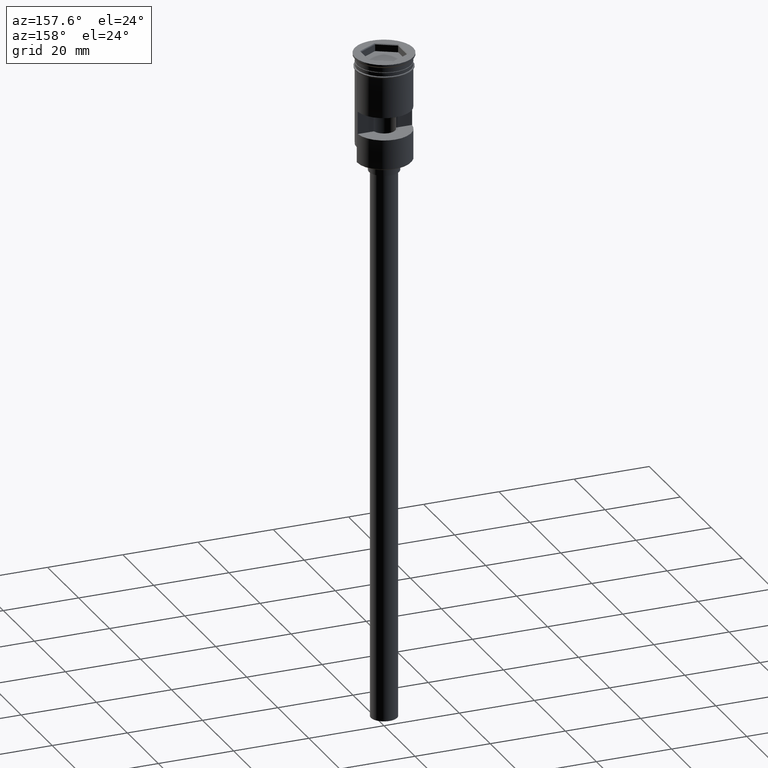
[diagram: clean part render]
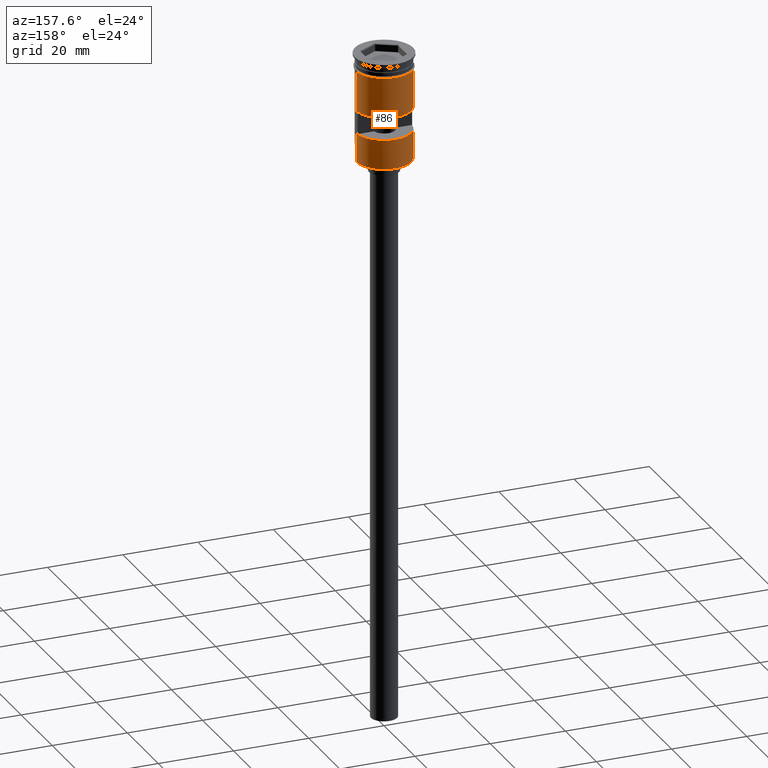
[diagram: same view with one face highlighted and labeled with its STEP entity id]
A machine part, auxiliary view. The second image highlights one B-rep face of the part: STEP entity #86.
In plain terms, the highlighted cylindrical surface (edge-blend (fillet) strip) has radius 7.25 mm, axis along (-0, -0, 1).
Its self-contained STEP definition (entity closure, byte-faithful):
#59 = CARTESIAN_POINT ( 'NONE',  ( 0.000000000000000000, 0.000000000000000000, 0.000000000000000000 ) ) ;
#69 = CIRCLE ( 'NONE', #297, 7.249999999999997335 ) ;
#71 = DIRECTION ( 'NONE',  ( -0.000000000000000000, -0.000000000000000000, 1.000000000000000000 ) ) ;
#74 = DIRECTION ( 'NONE',  ( -0.000000000000000000, -0.000000000000000000, 1.000000000000000000 ) ) ;
#86 = ADVANCED_FACE ( 'NONE', ( #302, #1543 ), #317, .T. ) ;
#91 = AXIS2_PLACEMENT_3D ( 'NONE', #59, #803, #792 ) ;
#98 = EDGE_CURVE ( 'NONE', #1457, #1281, #1050, .T. ) ;
#137 = CARTESIAN_POINT ( 'NONE',  ( -7.249999999999997335, 8.878689293818306130E-16, 0.000000000000000000 ) ) ;
#147 = DIRECTION ( 'NONE',  ( -0.000000000000000000, -5.217213461584384723E-16, 1.000000000000000000 ) ) ;
#230 = CARTESIAN_POINT ( 'NONE',  ( 0.000000000000000000, 0.000000000000000000, -28.29999999999999361 ) ) ;
#233 = CARTESIAN_POINT ( 'NONE',  ( -7.249999999999994671, 0.000000000000000000, -28.50000000000000000 ) ) ;
#276 = ORIENTED_EDGE ( 'NONE', *, *, #1500, .F. ) ;
#297 = AXIS2_PLACEMENT_3D ( 'NONE', #1579, #964, #357 ) ;
#302 = FACE_BOUND ( 'NONE', #409, .T. ) ;
#311 = CARTESIAN_POINT ( 'NONE',  ( 7.249999999999997335, 0.000000000000000000, 0.000000000000000000 ) ) ;
#317 = CYLINDRICAL_SURFACE ( 'NONE', #91, 7.249999999999997335 ) ;
#320 = AXIS2_PLACEMENT_3D ( 'NONE', #230, #876, #490 ) ;
#328 = CARTESIAN_POINT ( 'NONE',  ( 7.225129756620287225, 0.5999999999999999778, -20.50000000000000000 ) ) ;
#329 = CARTESIAN_POINT ( 'NONE',  ( 7.249999999999994671, 8.878689293818304158E-16, -28.29999999999999361 ) ) ;
#357 = DIRECTION ( 'NONE',  ( 0.000000000000000000, -1.000000000000000000, 2.392722035830079465E-16 ) ) ;
#369 = ORIENTED_EDGE ( 'NONE', *, *, #482, .F. ) ;
#402 = VECTOR ( 'NONE', #1108, 1000.000000000000000 ) ;
#407 = EDGE_CURVE ( 'NONE', #940, #895, #1520, .T. ) ;
#409 = EDGE_LOOP ( 'NONE', ( #369, #714, #831, #415 ) ) ;
#415 = ORIENTED_EDGE ( 'NONE', *, *, #1548, .F. ) ;
#440 = VERTEX_POINT ( 'NONE', #626 ) ;
#447 = EDGE_CURVE ( 'NONE', #440, #750, #1378, .T. ) ;
#459 = LINE ( 'NONE', #835, #1603 ) ;
#482 = EDGE_CURVE ( 'NONE', #1498, #691, #744, .T. ) ;
#490 = DIRECTION ( 'NONE',  ( -1.000000000000000000, 0.000000000000000000, 0.000000000000000000 ) ) ;
#498 = VECTOR ( 'NONE', #74, 1000.000000000000000 ) ;
#516 = DIRECTION ( 'NONE',  ( 0.000000000000000000, 1.000000000000000000, 4.785444071660158930E-16 ) ) ;
#520 = DIRECTION ( 'NONE',  ( 0.000000000000000000, 0.000000000000000000, -1.000000000000000000 ) ) ;
#545 = ORIENTED_EDGE ( 'NONE', *, *, #407, .T. ) ;
#586 = CARTESIAN_POINT ( 'NONE',  ( 0.000000000000000000, 0.000000000000000000, -3.799999999999998490 ) ) ;
#612 = CIRCLE ( 'NONE', #1239, 7.249999999999999112 ) ;
#626 = CARTESIAN_POINT ( 'NONE',  ( -7.249999999999994671, 0.000000000000000000, -24.29999999999999361 ) ) ;
#638 = DIRECTION ( 'NONE',  ( -0.000000000000000000, -0.000000000000000000, 1.000000000000000000 ) ) ;
#678 = EDGE_LOOP ( 'NONE', ( #821, #802, #276, #880, #706, #545 ) ) ;
#691 = VERTEX_POINT ( 'NONE', #1560 ) ;
#706 = ORIENTED_EDGE ( 'NONE', *, *, #930, .F. ) ;
#714 = ORIENTED_EDGE ( 'NONE', *, *, #1261, .F. ) ;
#719 = VECTOR ( 'NONE', #638, 1000.000000000000000 ) ;
#744 = CIRCLE ( 'NONE', #1263, 7.249999999999997335 ) ;
#750 = VERTEX_POINT ( 'NONE', #832 ) ;
#783 = CARTESIAN_POINT ( 'NONE',  ( 7.249999999999994671, 8.878689293818304158E-16, -28.50000000000000000 ) ) ;
#792 = DIRECTION ( 'NONE',  ( 1.000000000000000000, 0.000000000000000000, 0.000000000000000000 ) ) ;
#802 = ORIENTED_EDGE ( 'NONE', *, *, #447, .T. ) ;
#803 = DIRECTION ( 'NONE',  ( -0.000000000000000000, -0.000000000000000000, 1.000000000000000000 ) ) ;
#821 = ORIENTED_EDGE ( 'NONE', *, *, #1156, .T. ) ;
#831 = ORIENTED_EDGE ( 'NONE', *, *, #1517, .F. ) ;
#832 = CARTESIAN_POINT ( 'NONE',  ( -7.250000000000000000, 8.878689293818310074E-16, -3.799999999999998490 ) ) ;
#835 = CARTESIAN_POINT ( 'NONE',  ( -7.225129756620288113, 0.5999999999999999778, 0.000000000000000000 ) ) ;
#851 = DIRECTION ( 'NONE',  ( -0.000000000000000000, -0.000000000000000000, 1.000000000000000000 ) ) ;
#876 = DIRECTION ( 'NONE',  ( 0.000000000000000000, 0.000000000000000000, 1.000000000000000000 ) ) ;
#880 = ORIENTED_EDGE ( 'NONE', *, *, #98, .F. ) ;
#895 = VERTEX_POINT ( 'NONE', #996 ) ;
#930 = EDGE_CURVE ( 'NONE', #940, #1457, #1516, .T. ) ;
#940 = VERTEX_POINT ( 'NONE', #329 ) ;
#964 = DIRECTION ( 'NONE',  ( -0.000000000000000000, -2.608606730792192361E-16, -1.000000000000000000 ) ) ;
#996 = CARTESIAN_POINT ( 'NONE',  ( -7.249999999999994671, 0.000000000000000000, -28.29999999999999361 ) ) ;
#1050 = LINE ( 'NONE', #311, #1390 ) ;
#1077 = CARTESIAN_POINT ( 'NONE',  ( -7.225129756620288113, 0.5999999999999999778, -14.50000000000000178 ) ) ;
#1092 = DIRECTION ( 'NONE',  ( -0.000000000000000000, -0.000000000000000000, 1.000000000000000000 ) ) ;
#1108 = DIRECTION ( 'NONE',  ( -0.000000000000000000, -0.000000000000000000, 1.000000000000000000 ) ) ;
#1119 = CARTESIAN_POINT ( 'NONE',  ( 7.249999999999999112, 0.000000000000000000, -3.799999999999998490 ) ) ;
#1156 = EDGE_CURVE ( 'NONE', #895, #440, #1481, .T. ) ;
#1218 = VECTOR ( 'NONE', #520, 1000.000000000000000 ) ;
#1239 = AXIS2_PLACEMENT_3D ( 'NONE', #586, #1092, #1600 ) ;
#1261 = EDGE_CURVE ( 'NONE', #1496, #1498, #1262, .T. ) ;
#1262 = LINE ( 'NONE', #1497, #1218 ) ;
#1263 = AXIS2_PLACEMENT_3D ( 'NONE', #1269, #147, #516 ) ;
#1269 = CARTESIAN_POINT ( 'NONE',  ( 0.000000000000000000, 0.000000000000000000, -20.50000000000000000 ) ) ;
#1281 = VERTEX_POINT ( 'NONE', #1119 ) ;
#1378 = LINE ( 'NONE', #137, #719 ) ;
#1390 = VECTOR ( 'NONE', #71, 1000.000000000000000 ) ;
#1433 = CARTESIAN_POINT ( 'NONE',  ( 7.249999999999997335, 8.878689293818308102E-16, -24.29999999999999361 ) ) ;
#1457 = VERTEX_POINT ( 'NONE', #1433 ) ;
#1472 = CARTESIAN_POINT ( 'NONE',  ( 7.225129756620287225, 0.5999999999999999778, -14.50000000000000178 ) ) ;
#1481 = LINE ( 'NONE', #233, #402 ) ;
#1496 = VERTEX_POINT ( 'NONE', #1472 ) ;
#1497 = CARTESIAN_POINT ( 'NONE',  ( 7.225129756620288113, 0.5999999999999999778, 0.000000000000000000 ) ) ;
#1498 = VERTEX_POINT ( 'NONE', #328 ) ;
#1500 = EDGE_CURVE ( 'NONE', #1281, #750, #612, .T. ) ;
#1516 = LINE ( 'NONE', #783, #498 ) ;
#1517 = EDGE_CURVE ( 'NONE', #1590, #1496, #69, .T. ) ;
#1520 = CIRCLE ( 'NONE', #320, 7.249999999999997335 ) ;
#1543 = FACE_OUTER_BOUND ( 'NONE', #678, .T. ) ;
#1548 = EDGE_CURVE ( 'NONE', #691, #1590, #459, .T. ) ;
#1560 = CARTESIAN_POINT ( 'NONE',  ( -7.225129756620288113, 0.5999999999999999778, -20.50000000000000000 ) ) ;
#1579 = CARTESIAN_POINT ( 'NONE',  ( 0.000000000000000000, 0.000000000000000000, -14.50000000000000178 ) ) ;
#1590 = VERTEX_POINT ( 'NONE', #1077 ) ;
#1600 = DIRECTION ( 'NONE',  ( 1.000000000000000000, 0.000000000000000000, 0.000000000000000000 ) ) ;
#1603 = VECTOR ( 'NONE', #851, 1000.000000000000000 ) ;